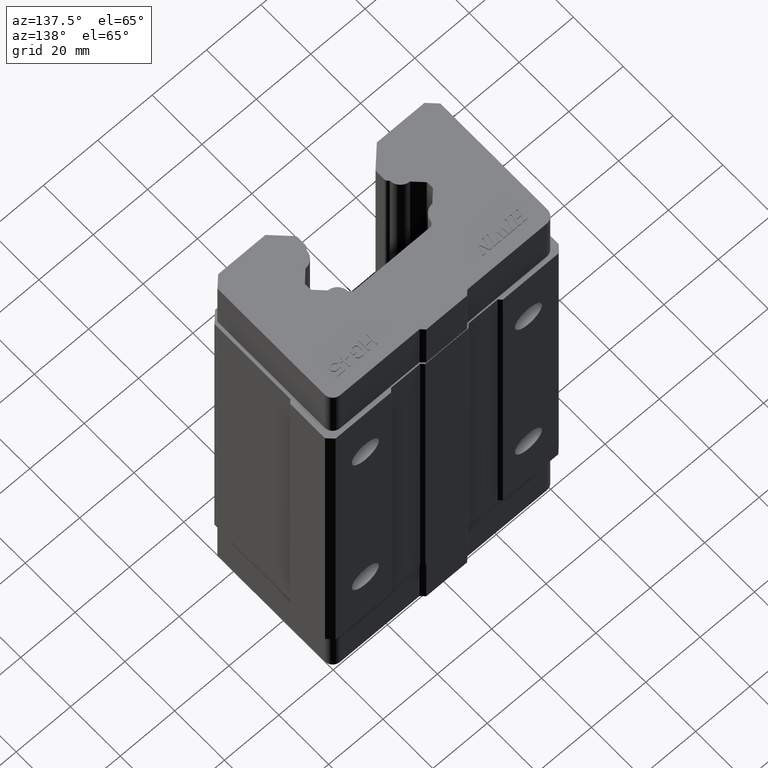
[diagram: clean part render]
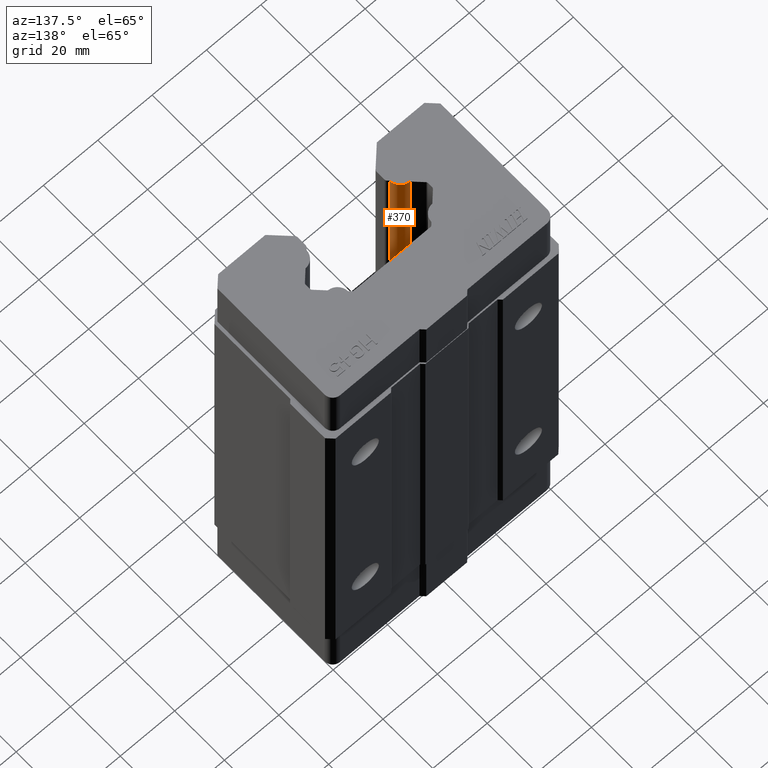
[diagram: same view with one face highlighted and labeled with its STEP entity id]
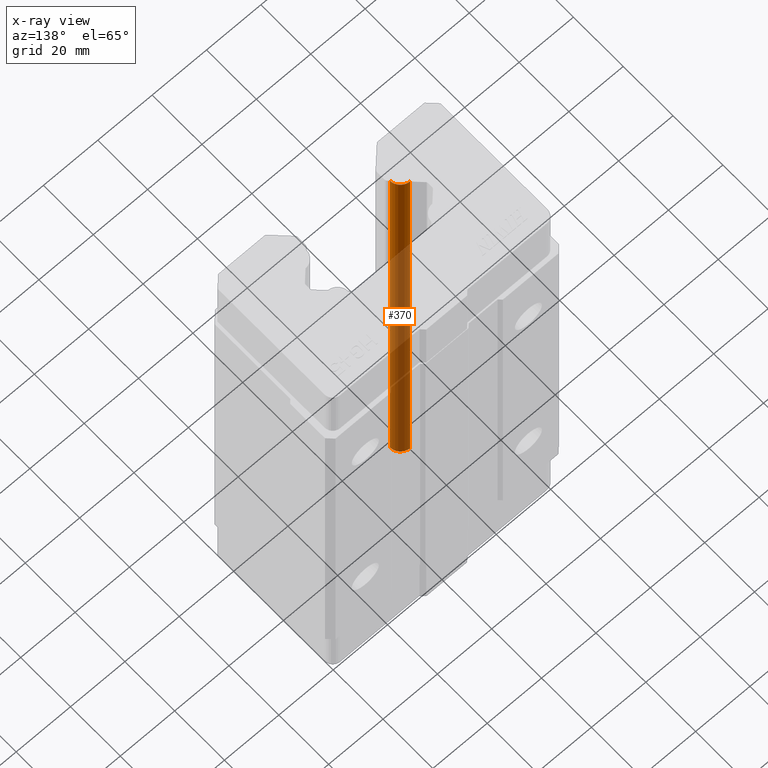
[diagram: x-ray of the same camera — body ghosted, the highlighted face saturated]
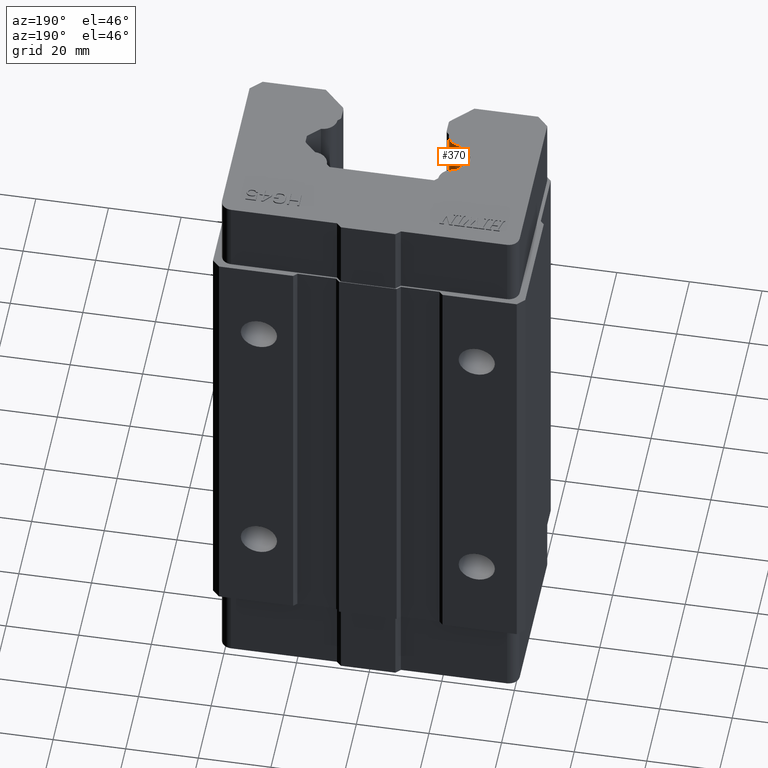
[diagram: same view with one face highlighted and labeled with its STEP entity id]
A machine part, auxiliary view. The second image highlights one B-rep face of the part: STEP entity #370.
The next image is the same camera in x-ray: the body ghosted, the highlighted face saturated — about 74% of this face is hidden behind the body in this view.
A second angle (auxiliary view) of the same face is appended — the face is thin or edge-on in the first view.
In plain terms, the highlighted cylindrical surface (edge-blend (fillet) strip) has radius 4 mm, axis along (0, 0, 1).
Its self-contained STEP definition (entity closure, byte-faithful):
#355 = ORIENTED_EDGE ( 'NONE', *, *, #356, .F. ) ;
#356 = EDGE_CURVE ( 'NONE', #11543, #472, #1460, .T. ) ;
#361 = ORIENTED_EDGE ( 'NONE', *, *, #11555, .T. ) ;
#370 = ADVANCED_FACE ( 'NONE', ( #1503 ), #1502, .T. ) ;
#371 = EDGE_LOOP ( 'NONE', ( #372, #470, #355, #361 ) ) ;
#372 = ORIENTED_EDGE ( 'NONE', *, *, #468, .T. ) ;
#468 = EDGE_CURVE ( 'NONE', #11548, #469, #1622, .T. ) ;
#469 = VERTEX_POINT ( 'NONE', #1617 ) ;
#470 = ORIENTED_EDGE ( 'NONE', *, *, #471, .F. ) ;
#471 = EDGE_CURVE ( 'NONE', #472, #469, #1616, .T. ) ;
#472 = VERTEX_POINT ( 'NONE', #1677 ) ;
#1456 = DIRECTION ( 'NONE',  ( 1.000000000000000000, 0.0000000000000000000, 0.0000000000000000000 ) ) ;
#1457 = DIRECTION ( 'NONE',  ( 0.0000000000000000000, 0.0000000000000000000, 1.000000000000000000 ) ) ;
#1458 = CARTESIAN_POINT ( 'NONE',  ( -19.33229302319000100, -17.76444002319000100, 85.60000000000000900 ) ) ;
#1459 = AXIS2_PLACEMENT_3D ( 'NONE', #1458, #1457, #1456 ) ;
#1460 = CIRCLE ( 'NONE', #1459, 4.000000000000000000 ) ;
#1498 = DIRECTION ( 'NONE',  ( 1.000000000000000000, 0.0000000000000000000, 0.0000000000000000000 ) ) ;
#1499 = DIRECTION ( 'NONE',  ( 0.0000000000000000000, 0.0000000000000000000, 1.000000000000000000 ) ) ;
#1500 = CARTESIAN_POINT ( 'NONE',  ( -19.33229302319000100, -17.76444002319000100, -64.40000000000000600 ) ) ;
#1501 = AXIS2_PLACEMENT_3D ( 'NONE', #1500, #1499, #1498 ) ;
#1502 = CYLINDRICAL_SURFACE ( 'NONE', #1501, 4.000000000000000000 ) ;
#1503 = FACE_OUTER_BOUND ( 'NONE', #371, .T. ) ;
#1613 = DIRECTION ( 'NONE',  ( 0.0000000000000000000, 0.0000000000000000000, -1.000000000000000000 ) ) ;
#1614 = VECTOR ( 'NONE', #1613, 1000.000000000000000 ) ;
#1615 = CARTESIAN_POINT ( 'NONE',  ( -19.23474843150999900, -13.76562956849000100, -64.40000000000000600 ) ) ;
#1616 = LINE ( 'NONE', #1615, #1614 ) ;
#1617 = CARTESIAN_POINT ( 'NONE',  ( -19.23474843151102600, -13.76562956848897700, -85.59999999999999400 ) ) ;
#1618 = DIRECTION ( 'NONE',  ( 1.000000000000000000, 0.0000000000000000000, 0.0000000000000000000 ) ) ;
#1619 = DIRECTION ( 'NONE',  ( 0.0000000000000000000, 0.0000000000000000000, 1.000000000000000000 ) ) ;
#1620 = CARTESIAN_POINT ( 'NONE',  ( -19.33229302319000100, -17.76444002319000100, -85.59999999999999400 ) ) ;
#1621 = AXIS2_PLACEMENT_3D ( 'NONE', #1620, #1619, #1618 ) ;
#1622 = CIRCLE ( 'NONE', #1621, 4.000000000000000000 ) ;
#1677 = CARTESIAN_POINT ( 'NONE',  ( -19.23474843151102600, -13.76562956848897700, 85.60000000000000900 ) ) ;
#2783 = CARTESIAN_POINT ( 'NONE',  ( -15.33348256848798200, -17.66689543151110100, 85.60000000000000900 ) ) ;
#2819 = DIRECTION ( 'NONE',  ( 0.0000000000000000000, 0.0000000000000000000, -1.000000000000000000 ) ) ;
#2820 = VECTOR ( 'NONE', #2819, 1000.000000000000000 ) ;
#2821 = CARTESIAN_POINT ( 'NONE',  ( -15.33348256848800900, -17.66689543150995000, -64.40000000000000600 ) ) ;
#2827 = LINE ( 'NONE', #2821, #2820 ) ;
#2840 = CARTESIAN_POINT ( 'NONE',  ( -15.33348256848798200, -17.66689543151110100, -85.59999999999999400 ) ) ;
#11543 = VERTEX_POINT ( 'NONE', #2783 ) ;
#11548 = VERTEX_POINT ( 'NONE', #2840 ) ;
#11555 = EDGE_CURVE ( 'NONE', #11543, #11548, #2827, .T. ) ;